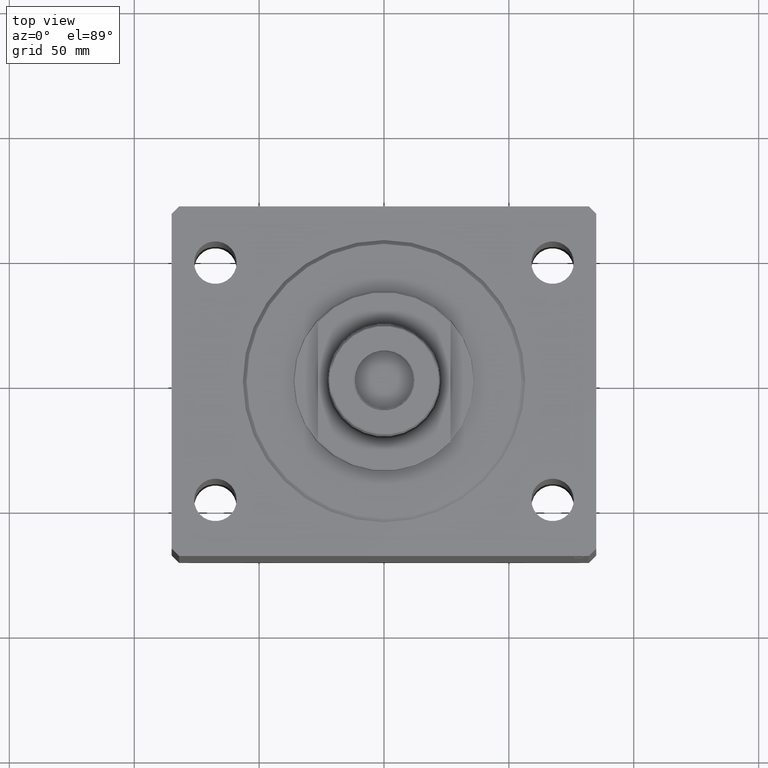
[diagram: clean part render]
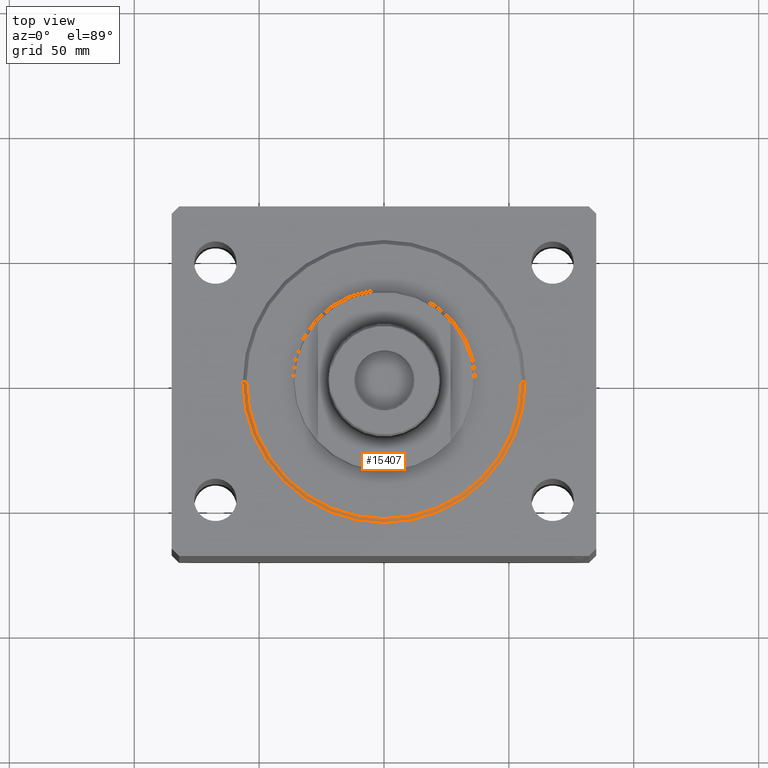
[diagram: same view with one face highlighted and labeled with its STEP entity id]
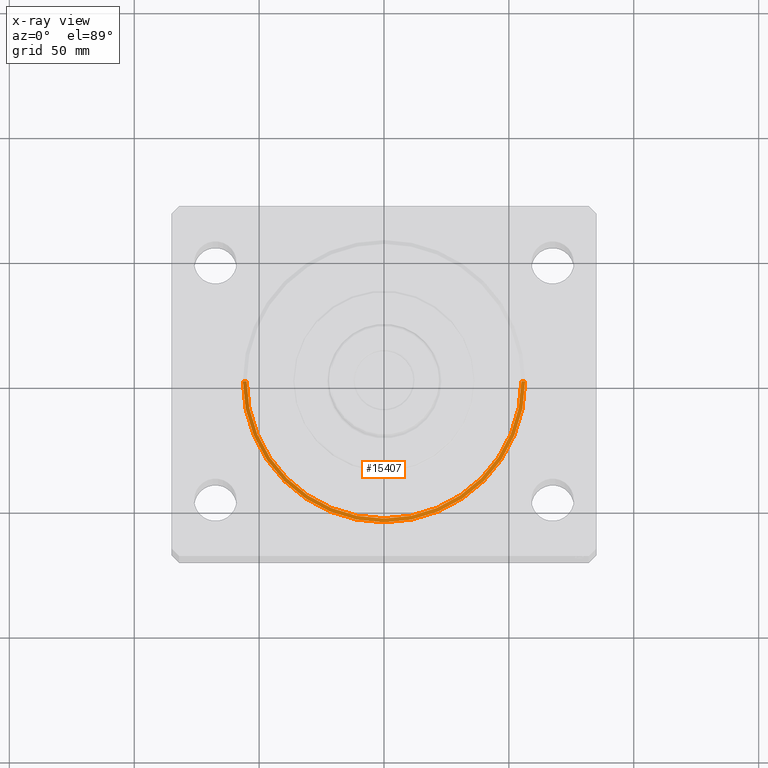
[diagram: x-ray of the same camera — body ghosted, the highlighted face saturated]
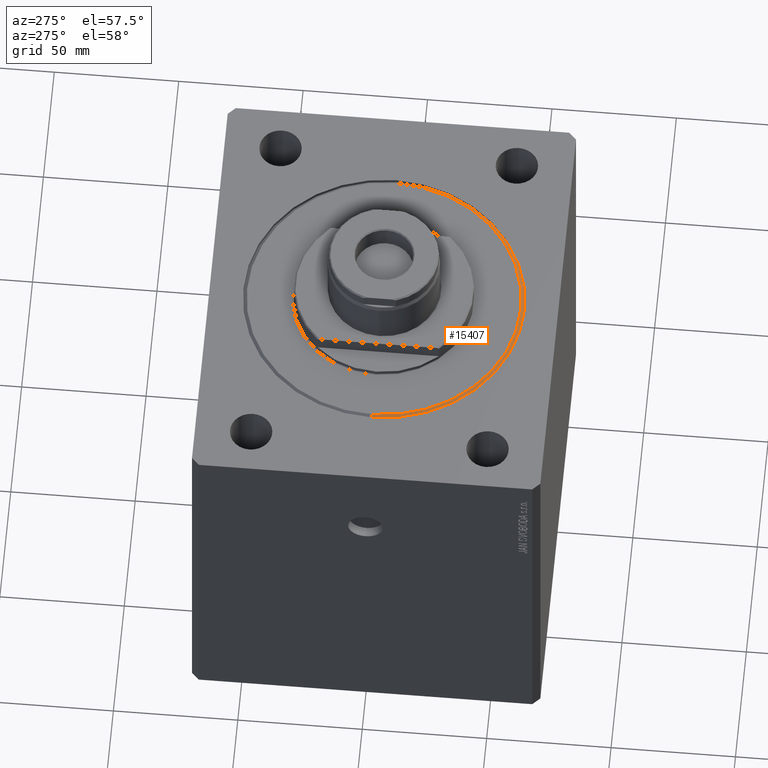
[diagram: same view with one face highlighted and labeled with its STEP entity id]
A machine part, top view. The second image highlights one B-rep face of the part: STEP entity #15407.
The next image is the same camera in x-ray: the body ghosted, the highlighted face saturated — about 0% of this face is hidden behind the body in this view.
A second angle (auxiliary view) of the same face is appended — the face is thin or edge-on in the first view.
In plain terms, the highlighted conical surface has half-angle 45 deg.
Its self-contained STEP definition (entity closure, byte-faithful):
#1245 = ORIENTED_EDGE ( 'NONE', *, *, #27008, .F. ) ;
#1649 = LINE ( 'NONE', #18155, #32294 ) ;
#2026 = DIRECTION ( 'NONE',  ( -0.000000000000000000, -0.000000000000000000, -1.000000000000000000 ) ) ;
#4068 = DIRECTION ( 'NONE',  ( -0.000000000000000000, -0.000000000000000000, 1.000000000000000000 ) ) ;
#6803 = VERTEX_POINT ( 'NONE', #25006 ) ;
#10004 = DIRECTION ( 'NONE',  ( 0.7071067811865459074, 0.000000000000000000, 0.7071067811865491270 ) ) ;
#11157 = CARTESIAN_POINT ( 'NONE',  ( -55.00000000000000000, 6.827405905246494765E-15, 0.000000000000000000 ) ) ;
#11822 = CARTESIAN_POINT ( 'NONE',  ( 56.50000000000000711, 0.000000000000000000, 1.500000000000015099 ) ) ;
#12453 = AXIS2_PLACEMENT_3D ( 'NONE', #20764, #4068, #24115 ) ;
#13629 = CARTESIAN_POINT ( 'NONE',  ( -56.50000000000000711, 0.000000000000000000, 1.500000000000015099 ) ) ;
#14174 = AXIS2_PLACEMENT_3D ( 'NONE', #36075, #15350, #19343 ) ;
#15350 = DIRECTION ( 'NONE',  ( -0.000000000000000000, -0.000000000000000000, 1.000000000000000000 ) ) ;
#15407 = ADVANCED_FACE ( 'NONE', ( #31696 ), #20258, .T. ) ;
#16517 = EDGE_CURVE ( 'NONE', #39305, #17549, #1649, .T. ) ;
#17549 = VERTEX_POINT ( 'NONE', #13629 ) ;
#18155 = CARTESIAN_POINT ( 'NONE',  ( -56.50000000000000711, 6.919254415182546126E-15, 1.500000000000015099 ) ) ;
#18807 = DIRECTION ( 'NONE',  ( -0.7071067811865459074, 8.659560562354913137E-17, 0.7071067811865491270 ) ) ;
#19343 = DIRECTION ( 'NONE',  ( 1.000000000000000000, 0.000000000000000000, 0.000000000000000000 ) ) ;
#19891 = VECTOR ( 'NONE', #10004, 1000.000000000000114 ) ;
#20258 = CONICAL_SURFACE ( 'NONE', #12453, 56.50000000000000711, 0.7853981633974459475 ) ;
#20305 = CIRCLE ( 'NONE', #21738, 55.00000000000000000 ) ;
#20764 = CARTESIAN_POINT ( 'NONE',  ( 0.000000000000000000, 0.000000000000000000, 1.500000000000015099 ) ) ;
#21738 = AXIS2_PLACEMENT_3D ( 'NONE', #38816, #2026, #42820 ) ;
#24028 = ORIENTED_EDGE ( 'NONE', *, *, #16517, .F. ) ;
#24115 = DIRECTION ( 'NONE',  ( 1.000000000000000000, 0.000000000000000000, 0.000000000000000000 ) ) ;
#25006 = CARTESIAN_POINT ( 'NONE',  ( 55.00000000000000000, 0.000000000000000000, 0.000000000000000000 ) ) ;
#25873 = ORIENTED_EDGE ( 'NONE', *, *, #42304, .F. ) ;
#27008 = EDGE_CURVE ( 'NONE', #6803, #39305, #20305, .T. ) ;
#28750 = LINE ( 'NONE', #11822, #19891 ) ;
#30496 = ORIENTED_EDGE ( 'NONE', *, *, #39489, .T. ) ;
#31696 = FACE_OUTER_BOUND ( 'NONE', #43096, .T. ) ;
#32294 = VECTOR ( 'NONE', #18807, 1000.000000000000114 ) ;
#33392 = CIRCLE ( 'NONE', #14174, 56.50000000000000711 ) ;
#36075 = CARTESIAN_POINT ( 'NONE',  ( 0.000000000000000000, 0.000000000000000000, 1.500000000000015099 ) ) ;
#38405 = CARTESIAN_POINT ( 'NONE',  ( 56.50000000000000711, 6.919254415182546126E-15, 1.500000000000015099 ) ) ;
#38816 = CARTESIAN_POINT ( 'NONE',  ( 0.000000000000000000, 0.000000000000000000, 0.000000000000000000 ) ) ;
#39305 = VERTEX_POINT ( 'NONE', #11157 ) ;
#39489 = EDGE_CURVE ( 'NONE', #6803, #40347, #28750, .T. ) ;
#40347 = VERTEX_POINT ( 'NONE', #38405 ) ;
#42304 = EDGE_CURVE ( 'NONE', #17549, #40347, #33392, .T. ) ;
#42820 = DIRECTION ( 'NONE',  ( 1.000000000000000000, 0.000000000000000000, 0.000000000000000000 ) ) ;
#43096 = EDGE_LOOP ( 'NONE', ( #24028, #1245, #30496, #25873 ) ) ;